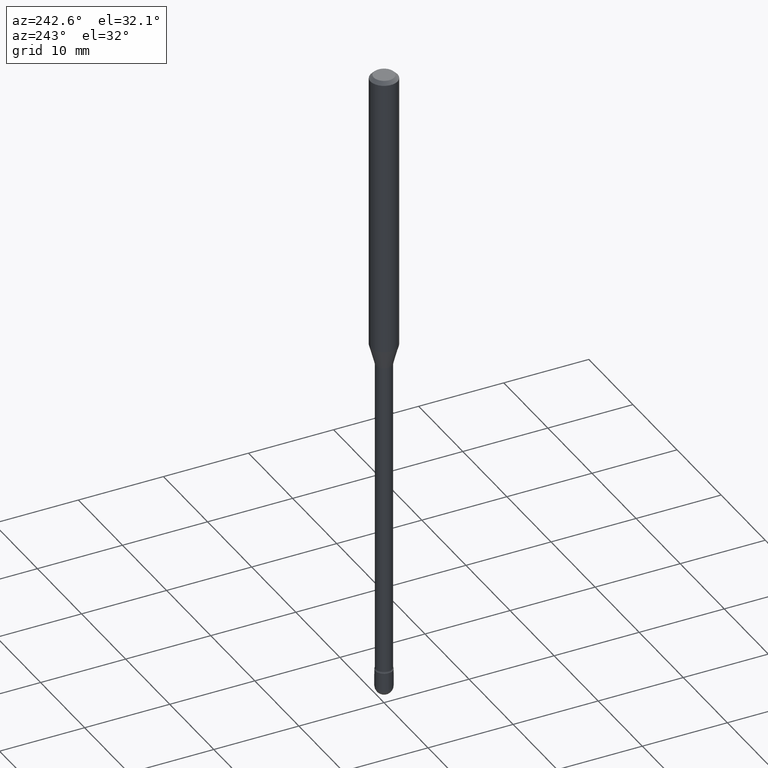
[diagram: clean part render]
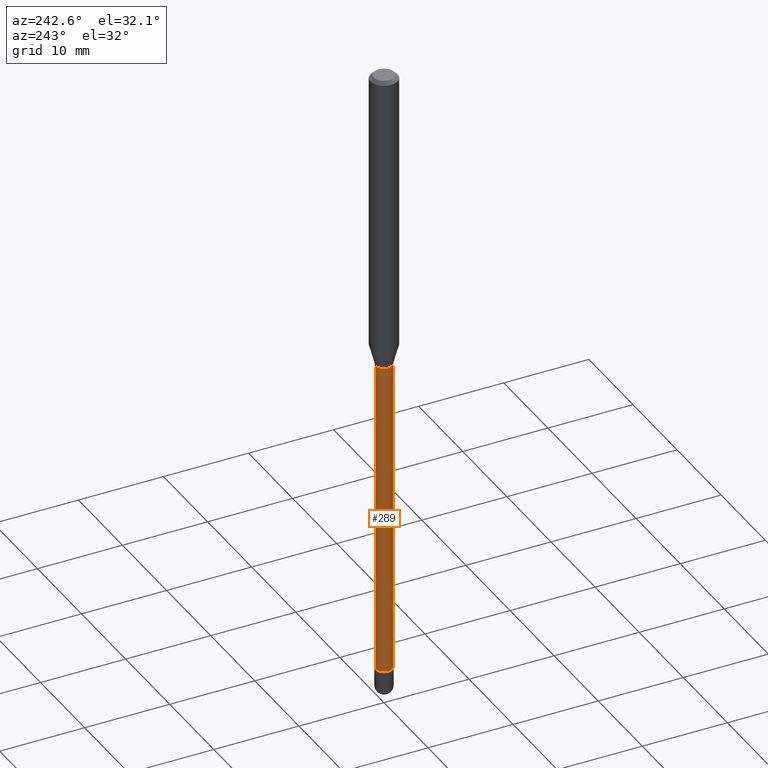
[diagram: same view with one face highlighted and labeled with its STEP entity id]
A machine part, auxiliary view. The second image highlights one B-rep face of the part: STEP entity #289.
In plain terms, the highlighted cylindrical surface (edge-blend (fillet) strip) has radius 0.955 mm, axis along (-0, 0, 1).
Its self-contained STEP definition (entity closure, byte-faithful):
#26 = EDGE_CURVE ( 'NONE', #328, #27, #354, .T. ) ;
#27 = VERTEX_POINT ( 'NONE', #87 ) ;
#35 = ORIENTED_EDGE ( 'NONE', *, *, #286, .F. ) ;
#52 = DIRECTION ( 'NONE',  ( -2.445459251773528513E-29, 3.491495021304371789E-15, 1.000000000000000000 ) ) ;
#56 = DIRECTION ( 'NONE',  ( -2.445459251773528513E-29, 3.491495021304371789E-15, 1.000000000000000000 ) ) ;
#71 = DIRECTION ( 'NONE',  ( -6.982962677686265922E-15, -1.000000000000000000, 3.491495021304371000E-15 ) ) ;
#74 = CARTESIAN_POINT ( 'NONE',  ( 2.756905814749898778E-16, 0.03759999999999019682, -2.871861204020250469 ) ) ;
#87 = CARTESIAN_POINT ( 'NONE',  ( -2.625593966809693369E-16, -0.03760000000000489340, -1.401974787463811101 ) ) ;
#102 = AXIS2_PLACEMENT_3D ( 'NONE', #255, #210, #156 ) ;
#113 = CARTESIAN_POINT ( 'NONE',  ( -1.169113584055446105E-44, 1.669184350826100908E-30, 4.780733988912460139E-16 ) ) ;
#115 = VERTEX_POINT ( 'NONE', #305 ) ;
#132 = VECTOR ( 'NONE', #56, 39.37007874015748143 ) ;
#147 = CIRCLE ( 'NONE', #102, 0.03760000000000000148 ) ;
#156 = DIRECTION ( 'NONE',  ( -6.982962677686265922E-15, -1.000000000000000000, 0.000000000000000000 ) ) ;
#171 = CARTESIAN_POINT ( 'NONE',  ( -2.625593966809348736E-16, -0.03760000000001024328, -2.871861204020250469 ) ) ;
#190 = ORIENTED_EDGE ( 'NONE', *, *, #307, .F. ) ;
#191 = DIRECTION ( 'NONE',  ( -6.982962677686266711E-15, -1.000000000000000000, 0.000000000000000000 ) ) ;
#192 = ORIENTED_EDGE ( 'NONE', *, *, #221, .T. ) ;
#210 = DIRECTION ( 'NONE',  ( -2.445459251773528513E-29, 3.491495021304371789E-15, 1.000000000000000000 ) ) ;
#221 = EDGE_CURVE ( 'NONE', #297, #328, #528, .T. ) ;
#229 = FACE_OUTER_BOUND ( 'NONE', #451, .T. ) ;
#255 = CARTESIAN_POINT ( 'NONE',  ( 3.428472214756603413E-29, -4.894987990424152224E-15, -1.401974787463811101 ) ) ;
#256 = AXIS2_PLACEMENT_3D ( 'NONE', #113, #514, #71 ) ;
#273 = CARTESIAN_POINT ( 'NONE',  ( 2.671640686457984199E-16, 0.03760000000000010556, 3.467931860902013131E-16 ) ) ;
#277 = DIRECTION ( 'NONE',  ( -2.445459251773528513E-29, 3.491495021304371789E-15, 1.000000000000000000 ) ) ;
#281 = ORIENTED_EDGE ( 'NONE', *, *, #26, .T. ) ;
#286 = EDGE_CURVE ( 'NONE', #297, #115, #445, .T. ) ;
#289 = ADVANCED_FACE ( 'NONE', ( #229 ), #532, .T. ) ;
#292 = VECTOR ( 'NONE', #52, 39.37007874015748143 ) ;
#297 = VERTEX_POINT ( 'NONE', #74 ) ;
#305 = CARTESIAN_POINT ( 'NONE',  ( 2.671640686458685299E-16, 0.03759999999999510956, -1.401974787463811101 ) ) ;
#307 = EDGE_CURVE ( 'NONE', #115, #27, #147, .T. ) ;
#325 = CARTESIAN_POINT ( 'NONE',  ( 7.023019551180786883E-29, -1.002708909571388477E-14, -2.871861204020250469 ) ) ;
#328 = VERTEX_POINT ( 'NONE', #171 ) ;
#354 = LINE ( 'NONE', #443, #292 ) ;
#377 = AXIS2_PLACEMENT_3D ( 'NONE', #325, #277, #191 ) ;
#443 = CARTESIAN_POINT ( 'NONE',  ( -2.625593966810043426E-16, -0.03760000000000010556, 6.093536116922908133E-16 ) ) ;
#445 = LINE ( 'NONE', #273, #132 ) ;
#451 = EDGE_LOOP ( 'NONE', ( #35, #192, #281, #190 ) ) ;
#514 = DIRECTION ( 'NONE',  ( -2.445459251773528513E-29, 3.491495021304371789E-15, 1.000000000000000000 ) ) ;
#528 = CIRCLE ( 'NONE', #377, 0.03760000000000021658 ) ;
#532 = CYLINDRICAL_SURFACE ( 'NONE', #256, 0.03760000000000010556 ) ;